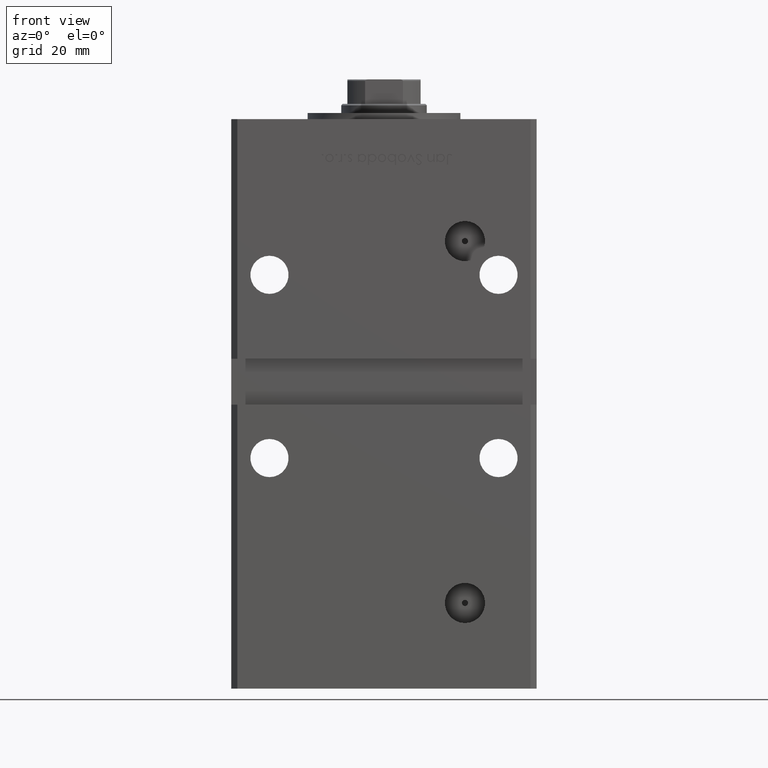
[diagram: clean part render]
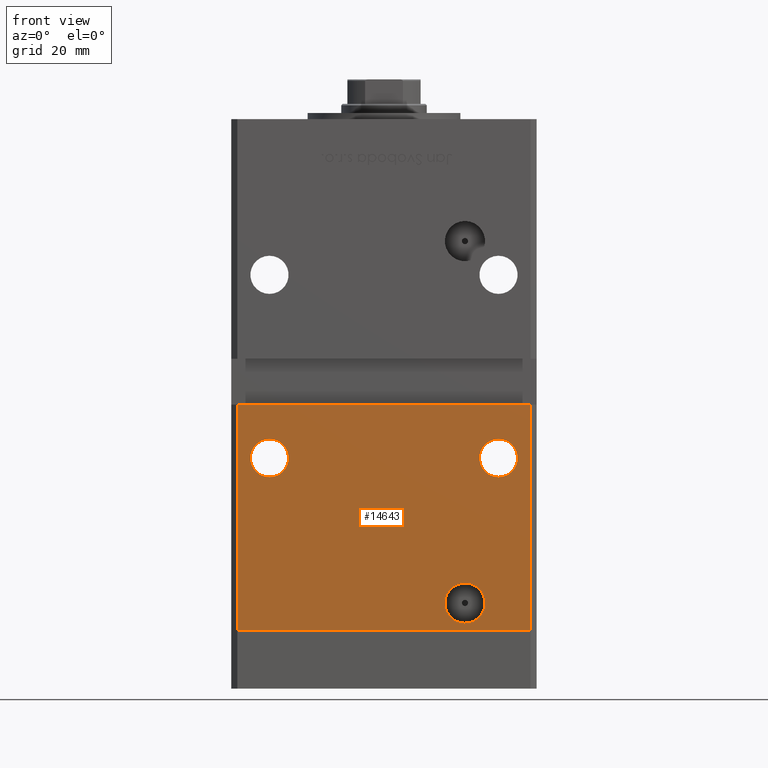
[diagram: same view with one face highlighted and labeled with its STEP entity id]
A machine part, front view. The second image highlights one B-rep face of the part: STEP entity #14643.
In plain terms, the highlighted planar face has unit normal (0, 1, 0).
Its self-contained STEP definition (entity closure, byte-faithful):
#411 = CARTESIAN_POINT ( 'NONE',  ( -37.50000000000000000, -43.50000000000000000, 62.74999999999998579 ) ) ;
#960 = EDGE_LOOP ( 'NONE', ( #34595, #5661 ) ) ;
#1142 = AXIS2_PLACEMENT_3D ( 'NONE', #27653, #44592, #44065 ) ;
#1301 = EDGE_LOOP ( 'NONE', ( #3238, #25838 ) ) ;
#1448 = LINE ( 'NONE', #4424, #50732 ) ;
#1587 = DIRECTION ( 'NONE',  ( 0.000000000000000000, 0.000000000000000000, -1.000000000000000000 ) ) ;
#1874 = CARTESIAN_POINT ( 'NONE',  ( 37.50000000000000000, -43.50000000000000000, 56.49999999999998579 ) ) ;
#2376 = DIRECTION ( 'NONE',  ( 0.000000000000000000, 1.000000000000000000, 0.000000000000000000 ) ) ;
#2527 = EDGE_CURVE ( 'NONE', #19656, #18999, #36854, .T. ) ;
#3000 = CARTESIAN_POINT ( 'NONE',  ( 37.50000000000000000, -43.50000000000000000, 56.49999999999998579 ) ) ;
#3238 = ORIENTED_EDGE ( 'NONE', *, *, #2527, .T. ) ;
#3390 = CARTESIAN_POINT ( 'NONE',  ( 47.99999999999998579, -43.50000000000000000, 148.5000000000000000 ) ) ;
#3887 = VERTEX_POINT ( 'NONE', #20495 ) ;
#3889 = CARTESIAN_POINT ( 'NONE',  ( -47.99999999999998579, -43.50000000000000000, 148.5000000000000000 ) ) ;
#4094 = EDGE_LOOP ( 'NONE', ( #27918, #40365, #26705, #42974 ) ) ;
#4424 = CARTESIAN_POINT ( 'NONE',  ( -47.99999999999998579, -43.50000000000000000, 0.000000000000000000 ) ) ;
#4871 = FACE_OUTER_BOUND ( 'NONE', #4094, .T. ) ;
#4980 = CARTESIAN_POINT ( 'NONE',  ( -37.50000000000000000, -43.50000000000000000, 56.49999999999998579 ) ) ;
#5357 = CARTESIAN_POINT ( 'NONE',  ( 26.49999999999998934, -43.50000000000000000, 9.000000000000007105 ) ) ;
#5661 = ORIENTED_EDGE ( 'NONE', *, *, #26927, .F. ) ;
#6089 = EDGE_CURVE ( 'NONE', #18999, #19656, #42123, .T. ) ;
#6946 = VERTEX_POINT ( 'NONE', #42437 ) ;
#7138 = AXIS2_PLACEMENT_3D ( 'NONE', #24561, #28841, #32876 ) ;
#7363 = AXIS2_PLACEMENT_3D ( 'NONE', #3000, #52186, #52974 ) ;
#7608 = EDGE_CURVE ( 'NONE', #14502, #3887, #1448, .T. ) ;
#7654 = CARTESIAN_POINT ( 'NONE',  ( 37.50000000000000000, -43.50000000000000000, 50.24999999999998579 ) ) ;
#7986 = EDGE_CURVE ( 'NONE', #18549, #52150, #34967, .T. ) ;
#11688 = ORIENTED_EDGE ( 'NONE', *, *, #33654, .T. ) ;
#13982 = ORIENTED_EDGE ( 'NONE', *, *, #35303, .T. ) ;
#14299 = CARTESIAN_POINT ( 'NONE',  ( -47.99999999999998579, -43.50000000000000000, 0.000000000000000000 ) ) ;
#14502 = VERTEX_POINT ( 'NONE', #14299 ) ;
#14643 = ADVANCED_FACE ( 'NONE', ( #45744, #25307, #41701, #4871 ), #16598, .F. ) ;
#15068 = VECTOR ( 'NONE', #40190, 1000.000000000000000 ) ;
#16598 = PLANE ( 'NONE',  #1142 ) ;
#18034 = AXIS2_PLACEMENT_3D ( 'NONE', #4980, #24890, #21358 ) ;
#18549 = VERTEX_POINT ( 'NONE', #30727 ) ;
#18999 = VERTEX_POINT ( 'NONE', #21217 ) ;
#19183 = EDGE_CURVE ( 'NONE', #22287, #6946, #52658, .T. ) ;
#19656 = VERTEX_POINT ( 'NONE', #411 ) ;
#20037 = LINE ( 'NONE', #3390, #34178 ) ;
#20495 = CARTESIAN_POINT ( 'NONE',  ( 47.99999999999998579, -43.50000000000000000, 0.000000000000000000 ) ) ;
#21217 = CARTESIAN_POINT ( 'NONE',  ( -37.50000000000000000, -43.50000000000000000, 50.24999999999998579 ) ) ;
#21358 = DIRECTION ( 'NONE',  ( 0.000000000000000000, 0.000000000000000000, 1.000000000000000000 ) ) ;
#21445 = EDGE_CURVE ( 'NONE', #18549, #14502, #23789, .T. ) ;
#21762 = DIRECTION ( 'NONE',  ( 0.000000000000000000, 0.000000000000000000, 1.000000000000000000 ) ) ;
#22287 = VERTEX_POINT ( 'NONE', #47133 ) ;
#23789 = LINE ( 'NONE', #3889, #15068 ) ;
#24561 = CARTESIAN_POINT ( 'NONE',  ( 26.49999999999998934, -43.50000000000000000, 9.000000000000007105 ) ) ;
#24890 = DIRECTION ( 'NONE',  ( 0.000000000000000000, 1.000000000000000000, 0.000000000000000000 ) ) ;
#25307 = FACE_BOUND ( 'NONE', #45402, .T. ) ;
#25698 = AXIS2_PLACEMENT_3D ( 'NONE', #27374, #2376, #38942 ) ;
#25838 = ORIENTED_EDGE ( 'NONE', *, *, #6089, .T. ) ;
#26690 = VECTOR ( 'NONE', #34707, 1000.000000000000000 ) ;
#26705 = ORIENTED_EDGE ( 'NONE', *, *, #21445, .T. ) ;
#26927 = EDGE_CURVE ( 'NONE', #6946, #22287, #34605, .T. ) ;
#27374 = CARTESIAN_POINT ( 'NONE',  ( -37.50000000000000000, -43.50000000000000000, 56.49999999999998579 ) ) ;
#27653 = CARTESIAN_POINT ( 'NONE',  ( -47.99999999999998579, -43.50000000000000000, 148.5000000000000000 ) ) ;
#27918 = ORIENTED_EDGE ( 'NONE', *, *, #44969, .F. ) ;
#28841 = DIRECTION ( 'NONE',  ( 0.000000000000000000, -1.000000000000000000, 0.000000000000000000 ) ) ;
#29483 = AXIS2_PLACEMENT_3D ( 'NONE', #5357, #51298, #1587 ) ;
#30097 = VERTEX_POINT ( 'NONE', #35536 ) ;
#30727 = CARTESIAN_POINT ( 'NONE',  ( -47.99999999999998579, -43.50000000000000000, 74.00000000000000000 ) ) ;
#32590 = CARTESIAN_POINT ( 'NONE',  ( 47.99999999999998579, -43.50000000000000000, 74.00000000000000000 ) ) ;
#32876 = DIRECTION ( 'NONE',  ( 0.000000000000000000, 0.000000000000000000, -1.000000000000000000 ) ) ;
#33187 = CIRCLE ( 'NONE', #42626, 6.249999999999998224 ) ;
#33654 = EDGE_CURVE ( 'NONE', #30097, #45283, #34797, .T. ) ;
#34178 = VECTOR ( 'NONE', #48284, 1000.000000000000000 ) ;
#34595 = ORIENTED_EDGE ( 'NONE', *, *, #19183, .F. ) ;
#34605 = CIRCLE ( 'NONE', #7138, 6.579999999999994742 ) ;
#34707 = DIRECTION ( 'NONE',  ( 1.000000000000000000, 0.000000000000000000, 0.000000000000000000 ) ) ;
#34797 = CIRCLE ( 'NONE', #7363, 6.249999999999998224 ) ;
#34967 = LINE ( 'NONE', #50822, #26690 ) ;
#35303 = EDGE_CURVE ( 'NONE', #45283, #30097, #33187, .T. ) ;
#35536 = CARTESIAN_POINT ( 'NONE',  ( 37.50000000000000000, -43.50000000000000000, 62.74999999999998579 ) ) ;
#36854 = CIRCLE ( 'NONE', #25698, 6.249999999999998224 ) ;
#38012 = DIRECTION ( 'NONE',  ( 1.000000000000000000, 0.000000000000000000, 0.000000000000000000 ) ) ;
#38942 = DIRECTION ( 'NONE',  ( 0.000000000000000000, 0.000000000000000000, 1.000000000000000000 ) ) ;
#40190 = DIRECTION ( 'NONE',  ( -0.000000000000000000, -0.000000000000000000, -1.000000000000000000 ) ) ;
#40365 = ORIENTED_EDGE ( 'NONE', *, *, #7986, .F. ) ;
#41701 = FACE_BOUND ( 'NONE', #960, .T. ) ;
#42123 = CIRCLE ( 'NONE', #18034, 6.249999999999998224 ) ;
#42437 = CARTESIAN_POINT ( 'NONE',  ( 26.49999999999998934, -43.50000000000000000, 15.58000000000000362 ) ) ;
#42626 = AXIS2_PLACEMENT_3D ( 'NONE', #1874, #51053, #21762 ) ;
#42974 = ORIENTED_EDGE ( 'NONE', *, *, #7608, .T. ) ;
#44065 = DIRECTION ( 'NONE',  ( 0.000000000000000000, -0.000000000000000000, 1.000000000000000000 ) ) ;
#44592 = DIRECTION ( 'NONE',  ( 0.000000000000000000, 1.000000000000000000, 0.000000000000000000 ) ) ;
#44969 = EDGE_CURVE ( 'NONE', #52150, #3887, #20037, .T. ) ;
#45283 = VERTEX_POINT ( 'NONE', #7654 ) ;
#45402 = EDGE_LOOP ( 'NONE', ( #11688, #13982 ) ) ;
#45744 = FACE_BOUND ( 'NONE', #1301, .T. ) ;
#47133 = CARTESIAN_POINT ( 'NONE',  ( 26.49999999999998934, -43.50000000000000000, 2.420000000000013252 ) ) ;
#48284 = DIRECTION ( 'NONE',  ( -0.000000000000000000, -0.000000000000000000, -1.000000000000000000 ) ) ;
#50732 = VECTOR ( 'NONE', #38012, 1000.000000000000000 ) ;
#50822 = CARTESIAN_POINT ( 'NONE',  ( -49.99999999999998579, -43.50000000000000000, 74.00000000000000000 ) ) ;
#51053 = DIRECTION ( 'NONE',  ( 0.000000000000000000, 1.000000000000000000, 0.000000000000000000 ) ) ;
#51298 = DIRECTION ( 'NONE',  ( 0.000000000000000000, -1.000000000000000000, 0.000000000000000000 ) ) ;
#52150 = VERTEX_POINT ( 'NONE', #32590 ) ;
#52186 = DIRECTION ( 'NONE',  ( 0.000000000000000000, 1.000000000000000000, 0.000000000000000000 ) ) ;
#52658 = CIRCLE ( 'NONE', #29483, 6.579999999999994742 ) ;
#52974 = DIRECTION ( 'NONE',  ( 0.000000000000000000, 0.000000000000000000, 1.000000000000000000 ) ) ;